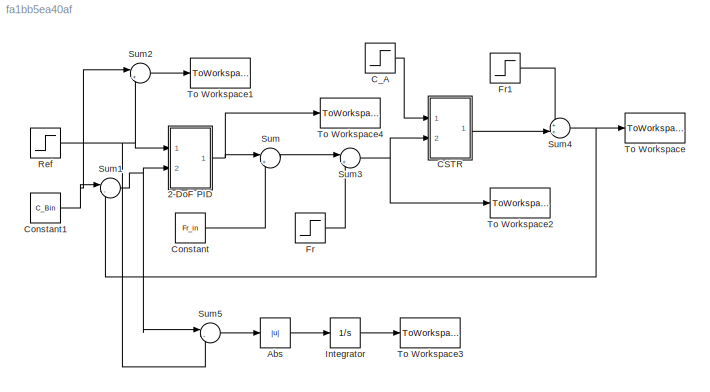
MODEL slx_fa1bb5ea40af
KIND model
CONFIG AbsTol = auto
CONFIG EnableMultiTasking = on
CONFIG FixedStep = auto
CONFIG MaxStep = auto
CONFIG MinStep = auto
CONFIG RelTol = 1e-5
CONFIG SampleTimeConstraint = Unconstrained
CONFIG Solver = ode45
CONFIG SolverName = ode45
CONFIG StartTime = 0.0
CONFIG StopTime = 10.0
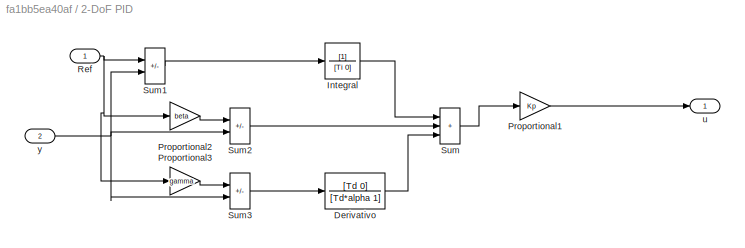
BLOCK [SubSystem] 2-DoF PID
  Ports = [2, 1]
  RequestExecContextInheritance = off
BLOCK [TransferFcn] 2-DoF PID/Derivativo
  Denominator = [Td*alpha 1]
  Numerator = [Td 0]
BLOCK [TransferFcn] 2-DoF PID/Integral
  Denominator = [Ti 0]
BLOCK [Gain] 2-DoF PID/Proportional1
  Gain = Kp
  OutDataTypeStr = Inherit: Same as input
  ParamDataTypeStr = Inherit: Same as input
  SaturateOnIntegerOverflow = on
BLOCK [Gain] 2-DoF PID/Proportional2
  Gain = beta
  OutDataTypeStr = Inherit: Same as input
  ParamDataTypeStr = Inherit: Same as input
  SaturateOnIntegerOverflow = on
BLOCK [Gain] 2-DoF PID/Proportional3
  Gain = gamma
  OutDataTypeStr = Inherit: Same as input
  ParamDataTypeStr = Inherit: Same as input
  SaturateOnIntegerOverflow = on
BLOCK [Inport] 2-DoF PID/Ref
BLOCK [Sum] 2-DoF PID/Sum
  IconShape = rectangular
  InputSameDT = on
  Inputs = +++
  OutDataTypeStr = Inherit: Same as first input
  Ports = [3, 1]
  SaturateOnIntegerOverflow = on
BLOCK [Sum] 2-DoF PID/Sum1
  IconShape = rectangular
  InputSameDT = on
  Inputs = +-
  OutDataTypeStr = Inherit: Same as first input
  Ports = [2, 1]
  SaturateOnIntegerOverflow = on
BLOCK [Sum] 2-DoF PID/Sum2
  IconShape = rectangular
  InputSameDT = on
  Inputs = +-
  OutDataTypeStr = Inherit: Same as first input
  Ports = [2, 1]
  SaturateOnIntegerOverflow = on
BLOCK [Sum] 2-DoF PID/Sum3
  IconShape = rectangular
  InputSameDT = on
  Inputs = +-
  OutDataTypeStr = Inherit: Same as first input
  Ports = [2, 1]
  SaturateOnIntegerOverflow = on
BLOCK [Outport] 2-DoF PID/u
BLOCK [Inport] 2-DoF PID/y
  Port = 2
BLOCK [Abs] Abs
  SaturateOnIntegerOverflow = off
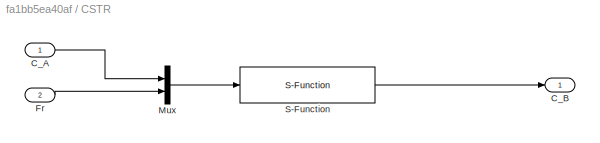
BLOCK [SubSystem] CSTR 
  Ports = [2, 1]
  RequestExecContextInheritance = off
BLOCK [Inport] CSTR /C_A
BLOCK [Outport] CSTR /C_B
BLOCK [Inport] CSTR /Fr
  Port = 2
BLOCK [Mux] CSTR /Mux
  DisplayOption = bar
  Inputs = 2
  Ports = [2, 1]
BLOCK [S-Function] CSTR /S-Function
  EnableBusSupport = off
  FunctionName = Ch2CSTR_Sfunction
  Parameters = C_Ao, C_Bo
  Ports = [1, 1]
  SFcnIsStateOwnerBlock = off
  SFunctionDeploymentMode = off
BLOCK [Step] C_A
  After = C_Afeed*(1+C_Afeed_Change/100)
  Before = C_Afeed
  SampleTime = 0
  Time = C_Afeed_instant
BLOCK [Constant] Constant
  Value = Fr_in
BLOCK [Constant] Constant1
  Value = C_Bin
BLOCK [Step] Fr
  After = Fr_Change
  SampleTime = 0
  Time = Fr_instant
BLOCK [Step] Fr1
  After = CB_Change
  SampleTime = 0
  Time = CB_instant
BLOCK [Integrator] Integrator
  Ports = [1, 1]
BLOCK [Step] Ref
  After = Ref_C_B_Change
  Time = Ref_C_B_instant
BLOCK [Sum] Sum
  Inputs = |++
  Ports = [2, 1]
BLOCK [Sum] Sum1
  Inputs = |-+
  Ports = [2, 1]
BLOCK [Sum] Sum2
  Inputs = |++
  Ports = [2, 1]
BLOCK [Sum] Sum3
  Inputs = |++
  Ports = [2, 1]
BLOCK [Sum] Sum4
  Inputs = ++|
  Ports = [2, 1]
BLOCK [Sum] Sum5
  Inputs = |-+
  Ports = [2, 1]
BLOCK [ToWorkspace] To Workspace
  MaxDataPoints = inf
  Ports = [1]
  SampleTime = -1
  SaveFormat = Timeseries
  VariableName = C_B
BLOCK [ToWorkspace] To Workspace1
  MaxDataPoints = inf
  Ports = [1]
  SampleTime = -1
  SaveFormat = Timeseries
  VariableName = Ref
BLOCK [ToWorkspace] To Workspace2
  MaxDataPoints = inf
  Ports = [1]
  SampleTime = -1
  SaveFormat = Timeseries
  VariableName = Fr
BLOCK [ToWorkspace] To Workspace3
  MaxDataPoints = inf
  Ports = [1]
  SampleTime = -1
  SaveFormat = Timeseries
  VariableName = IAE
BLOCK [ToWorkspace] To Workspace4
  MaxDataPoints = inf
  Ports = [1]
  SampleTime = 1
  SaveFormat = Timeseries
  VariableName = u
LINE 2-DoF PID/Derivativo:1 -> 2-DoF PID/Sum:3
LINE 2-DoF PID/Integral:1 -> 2-DoF PID/Sum:1
LINE 2-DoF PID/Proportional1:1 -> 2-DoF PID/u:1
LINE 2-DoF PID/Proportional2:1 -> 2-DoF PID/Sum2:1
LINE 2-DoF PID/Proportional3:1 -> 2-DoF PID/Sum3:1
NET 2-DoF PID/Ref:1 -> 2-DoF PID/Proportional2:1, 2-DoF PID/Proportional3:1, 2-DoF PID/Sum1:1
LINE 2-DoF PID/Sum1:1 -> 2-DoF PID/Integral:1
LINE 2-DoF PID/Sum2:1 -> 2-DoF PID/Sum:2
LINE 2-DoF PID/Sum3:1 -> 2-DoF PID/Derivativo:1
LINE 2-DoF PID/Sum:1 -> 2-DoF PID/Proportional1:1
NET 2-DoF PID/y:1 -> 2-DoF PID/Sum1:2, 2-DoF PID/Sum2:2, 2-DoF PID/Sum3:2
NET 2-DoF PID:1 -> Sum:1, To Workspace4:1
LINE Abs:1 -> Integrator:1
LINE CSTR /C_A:1 -> CSTR /Mux:1
LINE CSTR /Fr:1 -> CSTR /Mux:2
LINE CSTR /Mux:1 -> CSTR /S-Function:1
LINE CSTR /S-Function:1 -> CSTR /C_B:1
LINE CSTR :1 -> Sum4:2
LINE C_A:1 -> CSTR :1
NET Constant1:1 -> Sum1:1, Sum2:1
LINE Constant:1 -> Sum:2
LINE Fr1:1 -> Sum4:1
LINE Fr:1 -> Sum3:2
LINE Integrator:1 -> To Workspace3:1
NET Ref:1 -> 2-DoF PID:1, Sum2:2, Sum5:2
NET Sum1:1 -> 2-DoF PID:2, Sum5:1
LINE Sum2:1 -> To Workspace1:1
NET Sum3:1 -> CSTR :2, To Workspace2:1
NET Sum4:1 -> Sum1:2, To Workspace:1
LINE Sum5:1 -> Abs:1
LINE Sum:1 -> Sum3:1
note: NET lines group one-source signal fan-out (src -> all destinations, sorted); 1:1 wires keep LINE
